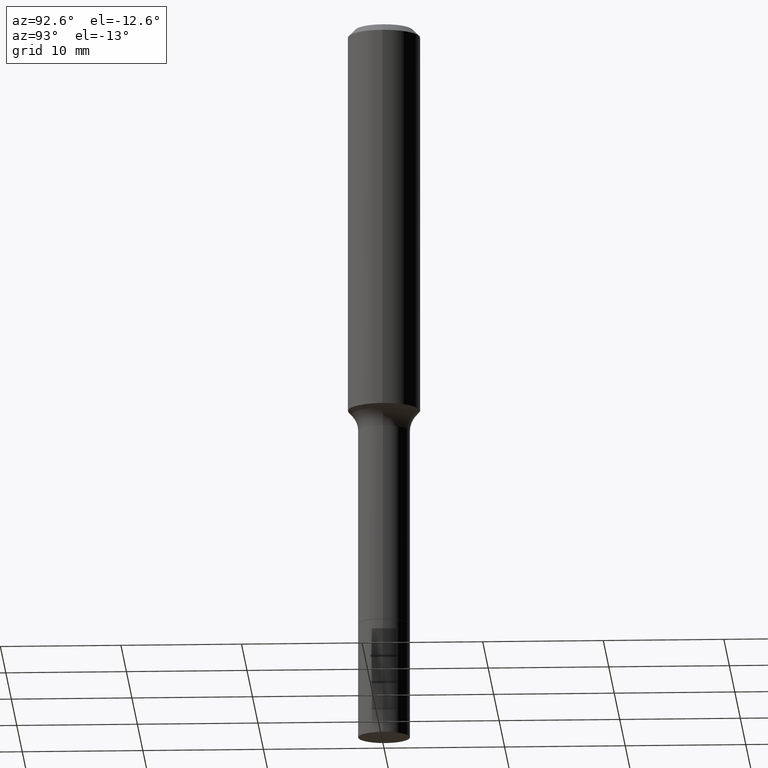
[diagram: clean part render]
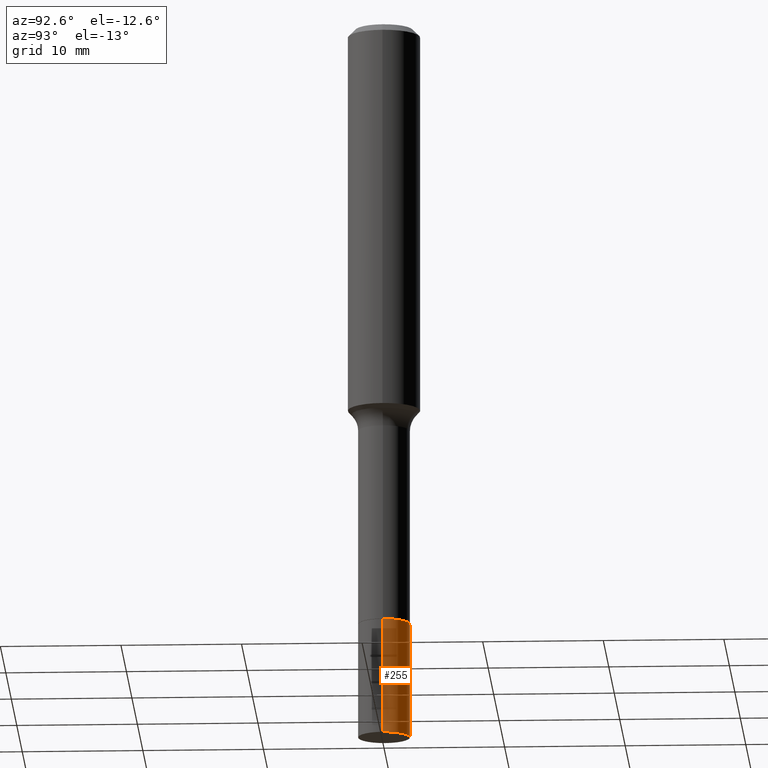
[diagram: same view with one face highlighted and labeled with its STEP entity id]
A machine part, auxiliary view. The second image highlights one B-rep face of the part: STEP entity #255.
In plain terms, the highlighted cylindrical surface (edge-blend (fillet) strip) has radius 2.1501 mm, axis along (-0, 0, 1).
Its self-contained STEP definition (entity closure, byte-faithful):
#5 = AXIS2_PLACEMENT_3D ( 'NONE', #475, #42, #46 ) ;
#16 = LINE ( 'NONE', #92, #406 ) ;
#19 = CIRCLE ( 'NONE', #316, 0.08465000000000001690 ) ;
#40 = CIRCLE ( 'NONE', #5, 0.08465000000000014180 ) ;
#42 = DIRECTION ( 'NONE',  ( -2.445468806185136597E-29, 3.491481338843145583E-15, 1.000000000000000000 ) ) ;
#46 = DIRECTION ( 'NONE',  ( 1.000000000000000000, -6.982962677686270655E-15, 0.000000000000000000 ) ) ;
#59 = DIRECTION ( 'NONE',  ( -2.445468806185136877E-29, 3.491481338843145188E-15, 1.000000000000000000 ) ) ;
#60 = CARTESIAN_POINT ( 'NONE',  ( 0.08465000000000001690, -7.518905063198713271E-15, -1.984200000000000186 ) ) ;
#65 = DIRECTION ( 'NONE',  ( 1.000000000000000000, -6.982962677686269077E-15, 0.000000000000000000 ) ) ;
#74 = AXIS2_PLACEMENT_3D ( 'NONE', #177, #301, #465 ) ;
#89 = VERTEX_POINT ( 'NONE', #60 ) ;
#92 = CARTESIAN_POINT ( 'NONE',  ( -0.08465000000000007241, -6.326322846711644457E-15, -1.984200000000000186 ) ) ;
#99 = EDGE_CURVE ( 'NONE', #257, #246, #16, .T. ) ;
#100 = CARTESIAN_POINT ( 'NONE',  ( -0.08465000000000014180, -6.986212819752998050E-15, -2.362200000000000077 ) ) ;
#150 = LINE ( 'NONE', #314, #264 ) ;
#163 = ORIENTED_EDGE ( 'NONE', *, *, #99, .T. ) ;
#177 = CARTESIAN_POINT ( 'NONE',  ( 4.852299205232548402E-29, -6.927797272532570075E-15, -1.984200000000000186 ) ) ;
#207 = EDGE_LOOP ( 'NONE', ( #494, #163, #468, #500 ) ) ;
#211 = EDGE_CURVE ( 'NONE', #287, #257, #40, .T. ) ;
#223 = DIRECTION ( 'NONE',  ( -2.445468806185136877E-29, 3.491481338843145188E-15, 1.000000000000000000 ) ) ;
#225 = CARTESIAN_POINT ( 'NONE',  ( 4.852299205232548402E-29, -6.927797272532570075E-15, -1.984200000000000186 ) ) ;
#230 = FACE_OUTER_BOUND ( 'NONE', #207, .T. ) ;
#233 = CARTESIAN_POINT ( 'NONE',  ( -0.08465000000000001690, -6.986212819752998838E-15, -1.984200000000000186 ) ) ;
#246 = VERTEX_POINT ( 'NONE', #233 ) ;
#254 = CYLINDRICAL_SURFACE ( 'NONE', #74, 0.08465000000000007241 ) ;
#255 = ADVANCED_FACE ( 'NONE', ( #230 ), #254, .T. ) ;
#257 = VERTEX_POINT ( 'NONE', #100 ) ;
#264 = VECTOR ( 'NONE', #223, 39.37007874015748143 ) ;
#287 = VERTEX_POINT ( 'NONE', #304 ) ;
#301 = DIRECTION ( 'NONE',  ( -2.445468806185136597E-29, 3.491481338843145583E-15, 1.000000000000000000 ) ) ;
#304 = CARTESIAN_POINT ( 'NONE',  ( 0.08465000000000014180, -8.838685009281422034E-15, -2.362200000000000077 ) ) ;
#312 = EDGE_CURVE ( 'NONE', #89, #246, #19, .T. ) ;
#314 = CARTESIAN_POINT ( 'NONE',  ( 0.08465000000000007241, -7.518905063198713271E-15, -1.984200000000000186 ) ) ;
#316 = AXIS2_PLACEMENT_3D ( 'NONE', #225, #352, #65 ) ;
#352 = DIRECTION ( 'NONE',  ( -2.445468806185136597E-29, 3.491481338843145583E-15, 1.000000000000000000 ) ) ;
#369 = EDGE_CURVE ( 'NONE', #287, #89, #150, .T. ) ;
#406 = VECTOR ( 'NONE', #59, 39.37007874015748143 ) ;
#465 = DIRECTION ( 'NONE',  ( 1.000000000000000000, -6.982962677686264344E-15, 0.000000000000000000 ) ) ;
#468 = ORIENTED_EDGE ( 'NONE', *, *, #312, .F. ) ;
#475 = CARTESIAN_POINT ( 'NONE',  ( 5.776686413970529753E-29, -8.247577218615279626E-15, -2.362200000000000077 ) ) ;
#494 = ORIENTED_EDGE ( 'NONE', *, *, #211, .T. ) ;
#500 = ORIENTED_EDGE ( 'NONE', *, *, #369, .F. ) ;